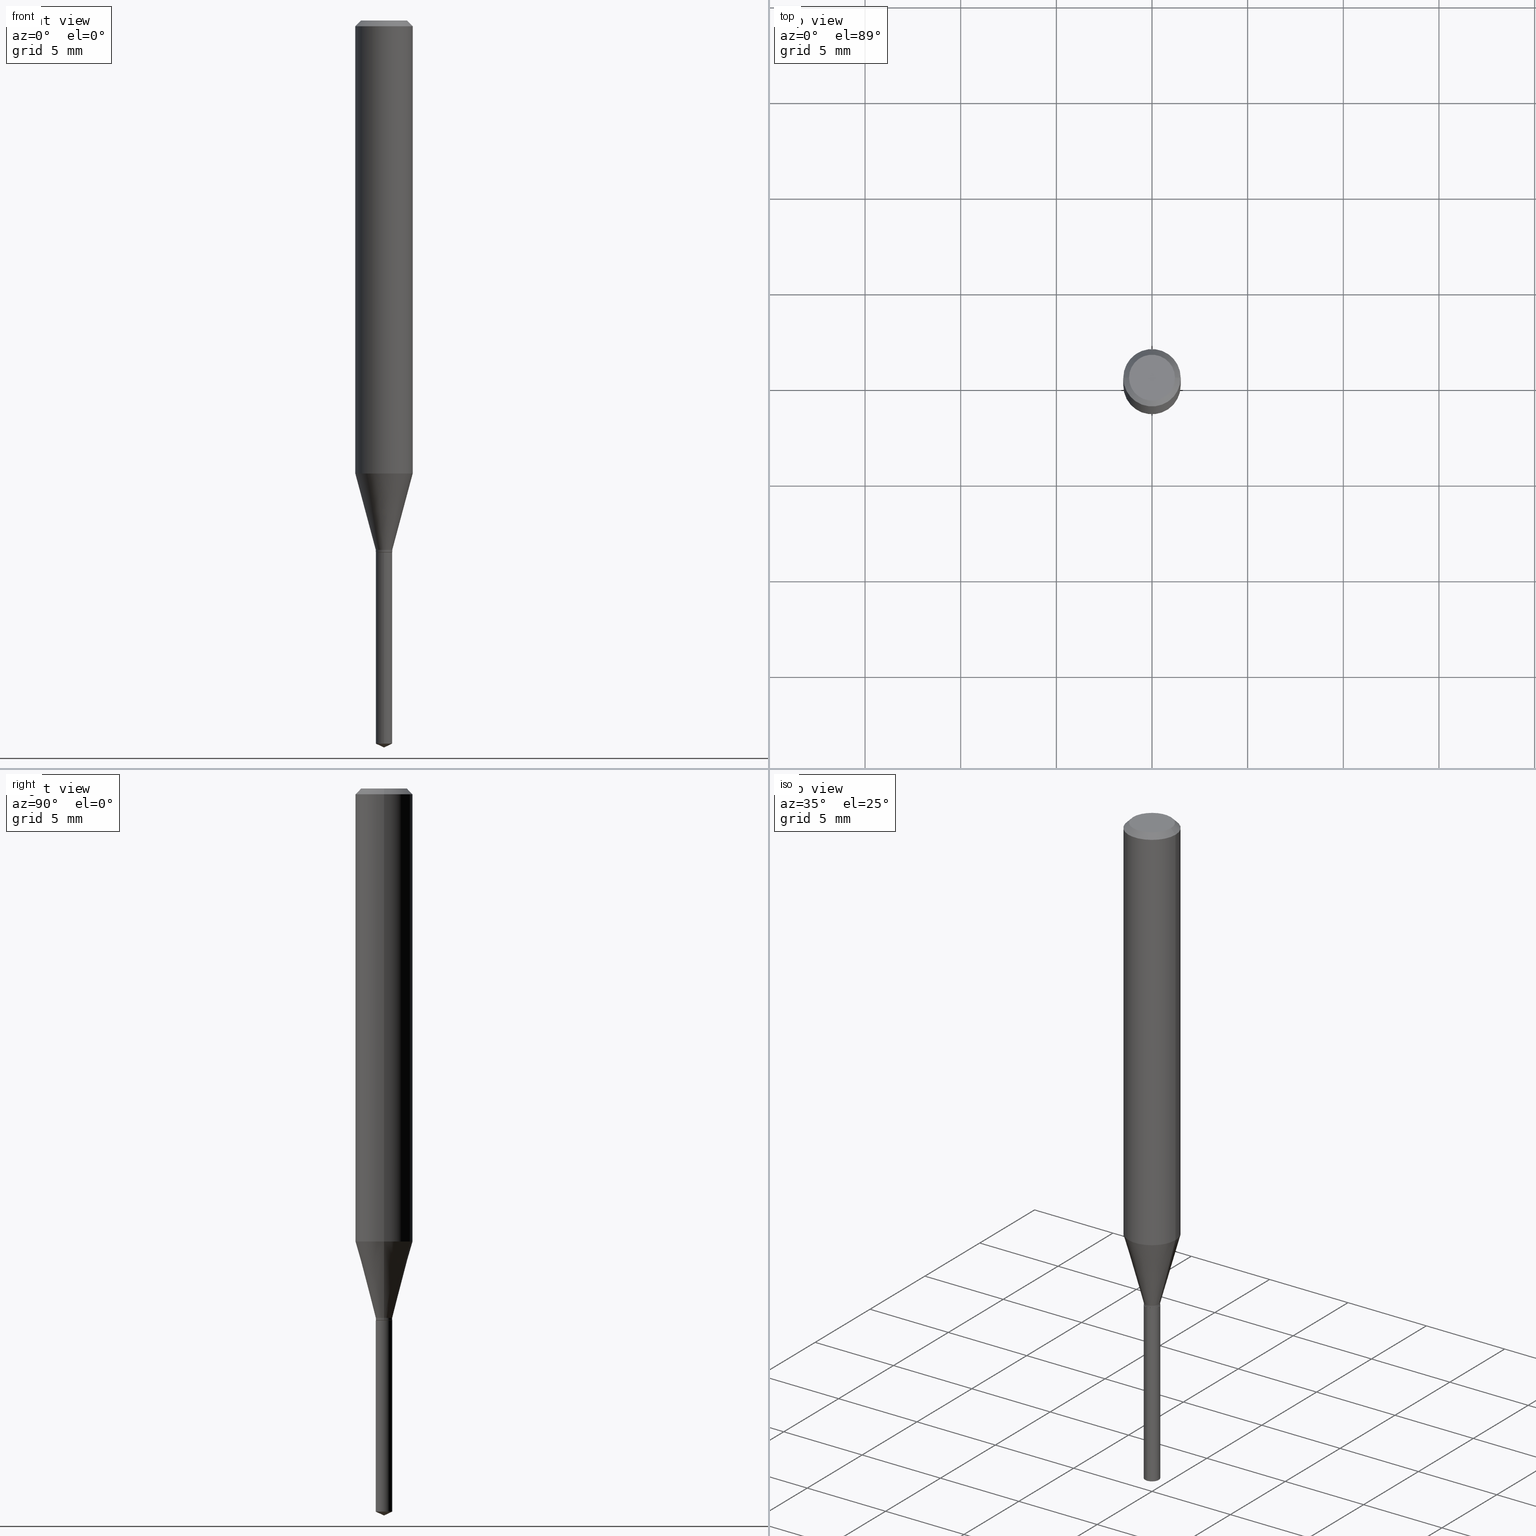
[diagram: canonical four-view strip — front | top / right | iso, engineering-drawing reading convention]
A machine part, canonical four-view strip (front | top / right | iso — engineering-drawing reading convention). The complete STEP part file that produces these views, byte-faithful:
ISO-10303-21;
HEADER;
FILE_DESCRIPTION (( 'STEP AP203' ),
    '1' );
FILE_NAME ('07464.STEP',
    '2024-04-23T21:44:01',
    ( '' ),
    ( '' ),
    'SwSTEP 2.0',
    'SolidWorks 2023',
    '' );
FILE_SCHEMA (( 'CONFIG_CONTROL_DESIGN' ));
ENDSEC;

DATA;
#1 = CC_DESIGN_APPROVAL ( #32, ( #219 ) ) ;
#2 = CARTESIAN_POINT ( 'NONE',  ( 2.888098660104663328E-31, -4.123439461173779030E-17, -0.01181000000000006871 ) ) ;
#3 = EDGE_LOOP ( 'NONE', ( #52, #10, #251, #330 ) ) ;
#4 = FACE_OUTER_BOUND ( 'NONE', #194, .T. ) ;
#5 = CC_DESIGN_DATE_AND_TIME_ASSIGNMENT ( #17, #210, ( #489 ) ) ;
#6 = EDGE_LOOP ( 'NONE', ( #88, #440, #262 ) ) ;
#7 = ORIENTED_EDGE ( 'NONE', *, *, #349, .T. ) ;
#8 = VECTOR ( 'NONE', #415, 39.37007874015748143 ) ;
#9 = CARTESIAN_POINT ( 'NONE',  ( -0.01694999999999995469, 1.204369937113366595E-16, -8.337594977982043527E-31 ) ) ;
#10 = ORIENTED_EDGE ( 'NONE', *, *, #416, .T. ) ;
#11 = DIRECTION ( 'NONE',  ( -2.445468806185136597E-29, 3.491481338843145583E-15, 1.000000000000000000 ) ) ;
#12 = ORIENTED_EDGE ( 'NONE', *, *, #299, .F. ) ;
#13 = APPROVAL_STATUS ( 'not_yet_approved' ) ;
#14 = CARTESIAN_POINT ( 'NONE',  ( 0.000000000000000000, 0.000000000000000000, 0.000000000000000000 ) ) ;
#15 = ORIENTED_EDGE ( 'NONE', *, *, #38, .T. ) ;
#16 = CC_DESIGN_APPROVAL ( #284, ( #337 ) ) ;
#17 = DATE_AND_TIME ( #287, #329 ) ;
#18 = FACE_OUTER_BOUND ( 'NONE', #229, .T. ) ;
#19 = CARTESIAN_POINT ( 'NONE',  ( -0.05905000000000006077, 4.195754854663395916E-16, -2.904631170795524694E-30 ) ) ;
#20 = EDGE_CURVE ( 'NONE', #368, #341, #315, .T. ) ;
#21 = EDGE_LOOP ( 'NONE', ( #478, #363, #274, #94 ) ) ;
#22 = PERSON_AND_ORGANIZATION_ROLE ( 'design_supplier' ) ;
#23 = DIRECTION ( 'NONE',  ( 1.000000000000000000, -6.982962677686274599E-15, 0.000000000000000000 ) ) ;
#24 = VECTOR ( 'NONE', #283, 39.37007874015748143 ) ;
#25 = CARTESIAN_POINT ( 'NONE',  ( 8.265746106709734507E-48, -1.180129479067563789E-33, -3.380025165646692144E-19 ) ) ;
#26 = VERTEX_POINT ( 'NONE', #154 ) ;
#27 = EDGE_CURVE ( 'NONE', #84, #368, #69, .T. ) ;
#28 = LINE ( 'NONE', #343, #100 ) ;
#29 = EDGE_LOOP ( 'NONE', ( #354, #365, #164, #257 ) ) ;
#30 = DIRECTION ( 'NONE',  ( -2.445468806185136597E-29, 3.491481338843145583E-15, 1.000000000000000000 ) ) ;
#31 = DIRECTION ( 'NONE',  ( -6.982962677686265922E-15, -1.000000000000000000, 0.000000000000000000 ) ) ;
#32 = APPROVAL ( #324, 'UNSPECIFIED' ) ;
#33 = LINE ( 'NONE', #220, #68 ) ;
#34 =( NAMED_UNIT ( * ) SI_UNIT ( $, .STERADIAN. ) SOLID_ANGLE_UNIT ( ) );
#35 = DIRECTION ( 'NONE',  ( 1.000000000000000000, -6.982962677686252511E-15, 0.000000000000000000 ) ) ;
#36 = VERTEX_POINT ( 'NONE', #41 ) ;
#37 = AXIS2_PLACEMENT_3D ( 'NONE', #417, #150, #35 ) ;
#38 = EDGE_CURVE ( 'NONE', #247, #173, #240, .T. ) ;
#39 = APPLICATION_PROTOCOL_DEFINITION ( 'international standard', 'config_control_design', 1994, #234 ) ;
#40 = AXIS2_PLACEMENT_3D ( 'NONE', #129, #89, #483 ) ;
#41 = CARTESIAN_POINT ( 'NONE',  ( -0.01694999999999995469, -3.691213183903725225E-15, -1.093999999999999861 ) ) ;
#42 = CARTESIAN_POINT ( 'NONE',  ( 0.000000000000000000, 0.000000000000000000, 0.000000000000000000 ) ) ;
#43 = ORIENTED_EDGE ( 'NONE', *, *, #352, .T. ) ;
#44 = APPROVAL_DATE_TIME ( #83, #403 ) ;
#45 = ORIENTED_EDGE ( 'NONE', *, *, #61, .F. ) ;
#46 = CC_DESIGN_PERSON_AND_ORGANIZATION_ASSIGNMENT ( #197, #22, ( #219 ) ) ;
#47 = DATE_AND_TIME ( #300, #482 ) ;
#48 = FACE_OUTER_BOUND ( 'NONE', #91, .T. ) ;
#49 = COORDINATED_UNIVERSAL_TIME_OFFSET ( 5, 0, .BEHIND. ) ;
#50 = DIRECTION ( 'NONE',  ( 1.000000000000000000, -6.982962677686266711E-15, 4.876176775795935793E-29 ) ) ;
#51 = PLANE ( 'NONE',  #450 ) ;
#52 = ORIENTED_EDGE ( 'NONE', *, *, #383, .F. ) ;
#53 = CIRCLE ( 'NONE', #250, 0.05904999999999999832 ) ;
#54 = DATE_AND_TIME ( #204, #289 ) ;
#55 = CC_DESIGN_PERSON_AND_ORGANIZATION_ASSIGNMENT ( #319, #116, ( #192 ) ) ;
#56 = CARTESIAN_POINT ( 'NONE',  ( 2.676565608369631794E-29, -3.821426325363822773E-15, -1.094499999999999806 ) ) ;
#57 = ORIENTED_EDGE ( 'NONE', *, *, #260, .F. ) ;
#58 = DIRECTION ( 'NONE',  ( 1.000000000000000000, -6.982962677686274599E-15, 0.000000000000000000 ) ) ;
#59 = ORIENTED_EDGE ( 'NONE', *, *, #396, .F. ) ;
#60 = DIRECTION ( 'NONE',  ( -6.982962677686267499E-15, -1.000000000000000000, 3.520397390770567071E-15 ) ) ;
#61 = EDGE_CURVE ( 'NONE', #432, #326, #309, .T. ) ;
#62 = AXIS2_PLACEMENT_3D ( 'NONE', #67, #305, #259 ) ;
#63 = FACE_OUTER_BOUND ( 'NONE', #282, .T. ) ;
#64 = CARTESIAN_POINT ( 'NONE',  ( 2.664093717458087237E-29, -3.803619770535721859E-15, -1.089399999999999924 ) ) ;
#65 = CYLINDRICAL_SURFACE ( 'NONE', #351, 0.01694999999999999979 ) ;
#66 = ADVANCED_FACE ( 'NONE', ( #48 ), #110, .T. ) ;
#67 = CARTESIAN_POINT ( 'NONE',  ( 2.279863275088461095E-29, -3.255040530450565438E-15, -0.9322806610013497641 ) ) ;
#68 = VECTOR ( 'NONE', #174, 39.37007874015748143 ) ;
#69 = CIRCLE ( 'NONE', #147, 0.01694999999999999979 ) ;
#70 = CARTESIAN_POINT ( 'NONE',  ( 2.664093717458087237E-29, -3.803619770535721859E-15, -1.089399999999999924 ) ) ;
#71 = MANIFOLD_SOLID_BREP ( 'Body-Move/Copy2[2]', #373 ) ;
#72 = CARTESIAN_POINT ( 'NONE',  ( 0.05905000000000006077, -4.123439461173744764E-16, 2.879382386107503023E-30 ) ) ;
#73 = DIRECTION ( 'NONE',  ( -2.445470214571802116E-29, 3.491479321953280158E-15, 1.000000000000000000 ) ) ;
#74 = CC_DESIGN_PERSON_AND_ORGANIZATION_ASSIGNMENT ( #253, #134, ( #219 ) ) ;
#75 = DIRECTION ( 'NONE',  ( 1.000000000000000000, 0.000000000000000000, 0.000000000000000000 ) ) ;
#76 = CONICAL_SURFACE ( 'NONE', #345, 84.42940631927162087, 1.134464013796303572 ) ;
#77 = DIRECTION ( 'NONE',  ( -2.445468806185136597E-29, 3.491481338843145583E-15, 1.000000000000000000 ) ) ;
#78 = CC_DESIGN_SECURITY_CLASSIFICATION ( #337, ( #219 ) ) ;
#79 = DIRECTION ( 'NONE',  ( -2.445468806185136877E-29, 3.491481338843145188E-15, 1.000000000000000000 ) ) ;
#80 = PLANE ( 'NONE',  #211 ) ;
#81 = EDGE_CURVE ( 'NONE', #393, #247, #142, .T. ) ;
#82 = ORIENTED_EDGE ( 'NONE', *, *, #299, .T. ) ;
#83 = DATE_AND_TIME ( #389, #241 ) ;
#84 = VERTEX_POINT ( 'NONE', #279 ) ;
#85 = CONICAL_SURFACE ( 'NONE', #447, 0.01694999999999995469, 0.2617993877991499074 ) ;
#86 = PERSON_AND_ORGANIZATION ( #209, #132 ) ;
#87 = CARTESIAN_POINT ( 'NONE',  ( 2.888098660104663328E-31, -4.123439461173779030E-17, -0.01181000000000006871 ) ) ;
#88 = ORIENTED_EDGE ( 'NONE', *, *, #221, .F. ) ;
#89 = DIRECTION ( 'NONE',  ( -2.445470214571802116E-29, 3.491479321953280158E-15, 1.000000000000000000 ) ) ;
#90 = ORIENTED_EDGE ( 'NONE', *, *, #104, .F. ) ;
#91 = EDGE_LOOP ( 'NONE', ( #286, #252, #82, #408 ) ) ;
#92 = ADVANCED_FACE ( 'NONE', ( #421 ), #80, .F. ) ;
#93 = CARTESIAN_POINT ( 'NONE',  ( 0.05905000000000011628, -3.667384476567939964E-15, -0.9322806610013497641 ) ) ;
#94 = ORIENTED_EDGE ( 'NONE', *, *, #439, .F. ) ;
#95 = DIRECTION ( 'NONE',  ( -0.7071067811865453523, 2.468850131082234184E-15, -0.7071067811865496822 ) ) ;
#96 = ADVANCED_FACE ( 'NONE', ( #117 ), #418, .T. ) ;
#97 = CARTESIAN_POINT ( 'NONE',  ( 0.01694999999999995469, -3.921980987922503745E-15, -1.089399999999999924 ) ) ;
#98 = CIRCLE ( 'NONE', #181, 0.01694999999999995469 ) ;
#99 = DIRECTION ( 'NONE',  ( 2.445468806185136597E-29, -3.491481338843145583E-15, -1.000000000000000000 ) ) ;
#100 = VECTOR ( 'NONE', #444, 39.37007874015748143 ) ;
#101 = DIRECTION ( 'NONE',  ( -2.445468806185136597E-29, 3.491481338843145583E-15, 1.000000000000000000 ) ) ;
#102 = VECTOR ( 'NONE', #95, 39.37007874015748143 ) ;
#103 = DIRECTION ( 'NONE',  ( -2.445468806185136597E-29, 3.491481338843145583E-15, 1.000000000000000000 ) ) ;
#104 = EDGE_CURVE ( 'NONE', #341, #358, #187, .T. ) ;
#105 = CARTESIAN_POINT ( 'NONE',  ( 0.01694999999999995469, -1.183612173867819109E-16, 8.265119634974088033E-31 ) ) ;
#106 = CARTESIAN_POINT ( 'NONE',  ( 2.676565608369631794E-29, -3.821426325363822773E-15, -1.094499999999999806 ) ) ;
#107 = CC_DESIGN_PERSON_AND_ORGANIZATION_ASSIGNMENT ( #193, #465, ( #489 ) ) ;
#108 = DIRECTION ( 'NONE',  ( 1.000000000000000000, -6.982962677686265922E-15, 4.876176775795935793E-29 ) ) ;
#109 = FACE_OUTER_BOUND ( 'NONE', #342, .T. ) ;
#110 = CYLINDRICAL_SURFACE ( 'NONE', #401, 0.01694999999999995469 ) ;
#111 = DIRECTION ( 'NONE',  ( 1.000000000000000000, -6.982962677686266711E-15, 4.876176775795935232E-29 ) ) ;
#112 = ORIENTED_EDGE ( 'NONE', *, *, #431, .F. ) ;
#113 = AXIS2_PLACEMENT_3D ( 'NONE', #106, #103, #413 ) ;
#114 = EDGE_CURVE ( 'NONE', #368, #84, #280, .T. ) ;
#115 = VECTOR ( 'NONE', #122, 39.37007874015748143 ) ;
#116 = PERSON_AND_ORGANIZATION_ROLE ( 'design_owner' ) ;
#117 = FACE_OUTER_BOUND ( 'NONE', #334, .T. ) ;
#118 = MECHANICAL_CONTEXT ( 'NONE', #206, 'mechanical' ) ;
#119 = ORIENTED_EDGE ( 'NONE', *, *, #332, .F. ) ;
#120 = EDGE_LOOP ( 'NONE', ( #427, #45 ) ) ;
#121 = DATE_AND_TIME ( #360, #195 ) ;
#122 = DIRECTION ( 'NONE',  ( -2.445468806185136877E-29, 3.491481338843145188E-15, 1.000000000000000000 ) ) ;
#123 = APPROVAL_PERSON_ORGANIZATION ( #188, #403, #357 ) ;
#124 = ORIENTED_EDGE ( 'NONE', *, *, #254, .F. ) ;
#125 = ORIENTED_EDGE ( 'NONE', *, *, #176, .F. ) ;
#126 = LINE ( 'NONE', #405, #102 ) ;
#127 = EDGE_CURVE ( 'NONE', #393, #290, #126, .T. ) ;
#128 = ORIENTED_EDGE ( 'NONE', *, *, #383, .T. ) ;
#129 = CARTESIAN_POINT ( 'NONE',  ( 2.676565608369631794E-29, -3.821426325363822773E-15, -1.094499999999999806 ) ) ;
#130 = ORIENTED_EDGE ( 'NONE', *, *, #304, .F. ) ;
#131 = CARTESIAN_POINT ( 'NONE',  ( 2.664093717458087237E-29, -3.803619770535721859E-15, -1.089399999999999924 ) ) ;
#132 = ORGANIZATION ( 'UNSPECIFIED', 'UNSPECIFIED', '' ) ;
#133 = ADVANCED_FACE ( 'NONE', ( #18 ), #246, .T. ) ;
#134 = PERSON_AND_ORGANIZATION_ROLE ( 'creator' ) ;
#135 = DIRECTION ( 'NONE',  ( -6.982962677686265922E-15, -1.000000000000000000, 0.000000000000000000 ) ) ;
#136 = AXIS2_PLACEMENT_3D ( 'NONE', #56, #474, #214 ) ;
#137 = VECTOR ( 'NONE', #167, 39.37007874015748143 ) ;
#138 = DIRECTION ( 'NONE',  ( 1.000000000000000000, -6.982962677686274599E-15, 0.000000000000000000 ) ) ;
#139 = PLANE ( 'NONE',  #263 ) ;
#140 = EDGE_LOOP ( 'NONE', ( #57, #15, #203, #232 ) ) ;
#141 = DIRECTION ( 'NONE',  ( 6.982962677686265922E-15, 1.000000000000000000, -3.491479321953280158E-15 ) ) ;
#142 = CIRCLE ( 'NONE', #420, 0.04724000000000000421 ) ;
#143 = CARTESIAN_POINT ( 'NONE',  ( 2.888098660104663328E-31, -4.123439461173779030E-17, -0.01181000000000006871 ) ) ;
#144 = DIRECTION ( 'NONE',  ( -2.445468806185136597E-29, 3.491481338843145583E-15, 1.000000000000000000 ) ) ;
#145 = DIRECTION ( 'NONE',  ( -1.000000000000000000, 6.982962677686266711E-15, 0.000000000000000000 ) ) ;
#146 = AXIS2_PLACEMENT_3D ( 'NONE', #42, #273, #111 ) ;
#147 = AXIS2_PLACEMENT_3D ( 'NONE', #320, #237, #353 ) ;
#148 = FACE_OUTER_BOUND ( 'NONE', #29, .T. ) ;
#149 = EDGE_LOOP ( 'NONE', ( #7, #128, #130, #317 ) ) ;
#150 = DIRECTION ( 'NONE',  ( -2.445468806185136597E-29, 3.491481338843145583E-15, 1.000000000000000000 ) ) ;
#151 = ORIENTED_EDGE ( 'NONE', *, *, #254, .T. ) ;
#152 = CARTESIAN_POINT ( 'NONE',  ( 3.658667988020872822E-29, -5.223602213574301462E-15, -1.496099999999999985 ) ) ;
#153 = AXIS2_PLACEMENT_3D ( 'NONE', #87, #99, #487 ) ;
#154 = CARTESIAN_POINT ( 'NONE',  ( 0.01694999999999995469, -3.921980987922503745E-15, -1.089399999999999924 ) ) ;
#155 = CIRCLE ( 'NONE', #414, 0.05904999999999999832 ) ;
#156 = ADVANCED_FACE ( 'NONE', ( #443 ), #51, .F. ) ;
#157 = APPROVAL_STATUS ( 'not_yet_approved' ) ;
#158 = ORIENTED_EDGE ( 'NONE', *, *, #439, .T. ) ;
#159 = VECTOR ( 'NONE', #179, 39.37007874015748143 ) ;
#160 = VERTEX_POINT ( 'NONE', #170 ) ;
#161 = APPROVAL_DATE_TIME ( #54, #284 ) ;
#162 = EDGE_CURVE ( 'NONE', #358, #341, #212, .T. ) ;
#163 = CARTESIAN_POINT ( 'NONE',  ( 0.05904999999999999832, -4.535783407291118600E-16, -0.01181000000000006871 ) ) ;
#164 = ORIENTED_EDGE ( 'NONE', *, *, #127, .T. ) ;
#165 = SECURITY_CLASSIFICATION_LEVEL ( 'unclassified' ) ;
#166 = CARTESIAN_POINT ( 'NONE',  ( 4.132873053354867254E-48, -5.900647395337818946E-34, -1.690012582823346072E-19 ) ) ;
#167 = DIRECTION ( 'NONE',  ( -6.328713451373337824E-15, -0.9063077870366440525, 0.4226182617407122644 ) ) ;
#168 = EDGE_CURVE ( 'NONE', #298, #290, #303, .T. ) ;
#169 = ORIENTED_EDGE ( 'NONE', *, *, #213, .T. ) ;
#170 = CARTESIAN_POINT ( 'NONE',  ( -0.01694999999999995469, -3.691213183903725225E-15, -1.089399999999999924 ) ) ;
#171 = VECTOR ( 'NONE', #463, 39.37007874015748143 ) ;
#172 = CARTESIAN_POINT ( 'NONE',  ( 2.888098660104663328E-31, -4.123439461173779030E-17, -0.01181000000000006871 ) ) ;
#173 = VERTEX_POINT ( 'NONE', #163 ) ;
#174 = DIRECTION ( 'NONE',  ( -0.7071067811864901742, 7.493145998870147479E-15, 0.7071067811866048602 ) ) ;
#175 = ORIENTED_EDGE ( 'NONE', *, *, #260, .T. ) ;
#176 = EDGE_CURVE ( 'NONE', #36, #208, #186, .T. ) ;
#177 = DIRECTION ( 'NONE',  ( 1.000000000000000000, -6.982962677686274599E-15, 0.000000000000000000 ) ) ;
#178 = LINE ( 'NONE', #270, #428 ) ;
#179 = DIRECTION ( 'NONE',  ( -2.445468806185136877E-29, 3.491481338843145188E-15, 1.000000000000000000 ) ) ;
#180 = ADVANCED_FACE ( 'NONE', ( #437 ), #76, .T. ) ;
#181 = AXIS2_PLACEMENT_3D ( 'NONE', #370, #442, #23 ) ;
#182 = LINE ( 'NONE', #9, #24 ) ;
#183 = DIRECTION ( 'NONE',  ( 2.445468806185136597E-29, -3.491481338843145583E-15, -1.000000000000000000 ) ) ;
#184 = CONICAL_SURFACE ( 'NONE', #313, 84.42940631927162087, 1.134464013796303572 ) ;
#185 = VERTEX_POINT ( 'NONE', #93 ) ;
#186 = CIRCLE ( 'NONE', #449, 0.01694999999999995469 ) ;
#187 = CIRCLE ( 'NONE', #40, 0.01694999999999999979 ) ;
#188 = PERSON_AND_ORGANIZATION ( #209, #132 ) ;
#189 = CARTESIAN_POINT ( 'NONE',  ( 8.265746106709734507E-48, -1.180129479067563789E-33, -3.380025165646692144E-19 ) ) ;
#190 = LINE ( 'NONE', #423, #171 ) ;
#191 = EDGE_LOOP ( 'NONE', ( #59, #291, #323 ) ) ;
#192 = PRODUCT ( '07464', '07464', '', ( #118 ) ) ;
#193 = PERSON_AND_ORGANIZATION ( #209, #132 ) ;
#194 = EDGE_LOOP ( 'NONE', ( #151, #466, #471, #12 ) ) ;
#195 = LOCAL_TIME ( 17, 44, 1.000000000000000000, #49 ) ;
#196 = CLOSED_SHELL ( 'NONE', ( #96, #314, #180, #422, #366 ) ) ;
#197 = PERSON_AND_ORGANIZATION ( #209, #132 ) ;
#198 = CARTESIAN_POINT ( 'NONE',  ( 0.000000000000000000, 0.000000000000000000, 0.000000000000000000 ) ) ;
#199 = EDGE_LOOP ( 'NONE', ( #438, #385, #43, #90 ) ) ;
#200 = ADVANCED_FACE ( 'NONE', ( #328 ), #331, .T. ) ;
#201 = APPROVAL_ROLE ( '' ) ;
#202 = LINE ( 'NONE', #258, #137 ) ;
#203 = ORIENTED_EDGE ( 'NONE', *, *, #356, .T. ) ;
#204 = CALENDAR_DATE ( 2024, 23, 4 ) ;
#205 = DIRECTION ( 'NONE',  ( -1.000000000000000000, 6.982962677686265922E-15, -4.876176775795935793E-29 ) ) ;
#206 = APPLICATION_CONTEXT ( 'configuration controlled 3d designs of mechanical parts and assemblies' ) ;
#207 = VECTOR ( 'NONE', #79, 39.37007874015748143 ) ;
#208 = VERTEX_POINT ( 'NONE', #476 ) ;
#209 = PERSON ( 'UNSPECIFIED', 'UNSPECIFIED', 'UNSPECIFIED', ('UNSPECIFIED'), ('UNSPECIFIED'), ('UNSPECIFIED') ) ;
#210 = DATE_TIME_ROLE ( 'creation_date' ) ;
#211 = AXIS2_PLACEMENT_3D ( 'NONE', #236, #464, #108 ) ;
#212 = CIRCLE ( 'NONE', #348, 0.01694999999999999979 ) ;
#213 = EDGE_CURVE ( 'NONE', #326, #432, #239, .T. ) ;
#214 = DIRECTION ( 'NONE',  ( 1.000000000000000000, -6.982962677686252511E-15, 0.000000000000000000 ) ) ;
#215 = AXIS2_PLACEMENT_3D ( 'NONE', #395, #399, #50 ) ;
#216 = ORIENTED_EDGE ( 'NONE', *, *, #352, .F. ) ;
#217 = DIRECTION ( 'NONE',  ( -2.445468806185136597E-29, 3.491481338843145583E-15, 1.000000000000000000 ) ) ;
#218 = LINE ( 'NONE', #97, #376 ) ;
#219 = PRODUCT_DEFINITION_FORMATION_WITH_SPECIFIED_SOURCE ( 'ANY', '', #192, .NOT_KNOWN. ) ;
#220 = CARTESIAN_POINT ( 'NONE',  ( -0.01644999999999999934, -3.704542045331286544E-15, -1.094499999999999806 ) ) ;
#221 = EDGE_CURVE ( 'NONE', #477, #84, #202, .T. ) ;
#222 = FACE_OUTER_BOUND ( 'NONE', #199, .T. ) ;
#223 = CARTESIAN_POINT ( 'NONE',  ( 2.676565608369631794E-29, -3.821426325363822773E-15, -1.094499999999999806 ) ) ;
#224 = CARTESIAN_POINT ( 'NONE',  ( -0.05904999999999999832, -1.228561977064811302E-15, -0.01181000000000006871 ) ) ;
#225 = ADVANCED_FACE ( 'NONE', ( #301 ), #333, .T. ) ;
#226 = AXIS2_PLACEMENT_3D ( 'NONE', #461, #459, #390 ) ;
#227 = FACE_OUTER_BOUND ( 'NONE', #3, .T. ) ;
#228 =( CONVERSION_BASED_UNIT ( 'INCH', #425 ) LENGTH_UNIT ( ) NAMED_UNIT ( #338 ) );
#229 = EDGE_LOOP ( 'NONE', ( #306, #387, #158, #119 ) ) ;
#230 = APPLICATION_PROTOCOL_DEFINITION ( 'international standard', 'config_control_design', 1994, #206 ) ;
#231 = APPROVAL_PERSON_ORGANIZATION ( #86, #284, #201 ) ;
#232 = ORIENTED_EDGE ( 'NONE', *, *, #127, .F. ) ;
#233 = AXIS2_PLACEMENT_3D ( 'NONE', #14, #434, #292 ) ;
#234 = APPLICATION_CONTEXT ( 'configuration controlled 3d designs of mechanical parts and assemblies' ) ;
#235 = CC_DESIGN_DATE_AND_TIME_ASSIGNMENT ( #121, #391, ( #337 ) ) ;
#236 = CARTESIAN_POINT ( 'NONE',  ( 2.676565608369631794E-29, -3.821426325363822773E-15, -1.094499999999999806 ) ) ;
#237 = DIRECTION ( 'NONE',  ( -2.445470214571802116E-29, 3.491479321953280158E-15, 1.000000000000000000 ) ) ;
#238 = COORDINATED_UNIVERSAL_TIME_OFFSET ( 5, 0, .BEHIND. ) ;
#239 = CIRCLE ( 'NONE', #136, 0.01644999999999999934 ) ;
#240 = LINE ( 'NONE', #272, #255 ) ;
#241 = LOCAL_TIME ( 17, 44, 1.000000000000000000, #281 ) ;
#242 = EDGE_CURVE ( 'NONE', #26, #185, #218, .T. ) ;
#243 = CARTESIAN_POINT ( 'NONE',  ( -9.261968845786000133E-28, 1.322362114038720264E-13, 37.87397874015748300 ) ) ;
#244 = ORIENTED_EDGE ( 'NONE', *, *, #162, .T. ) ;
#245 = MANIFOLD_SOLID_BREP ( 'Body-Move/Copy2[1]', #196 ) ;
#246 = CYLINDRICAL_SURFACE ( 'NONE', #233, 0.05905000000000006077 ) ;
#247 = VERTEX_POINT ( 'NONE', #256 ) ;
#248 = DESIGN_CONTEXT ( 'detailed design', #234, 'design' ) ;
#249 = DIRECTION ( 'NONE',  ( -2.445468806185136597E-29, 3.491481338843145583E-15, 1.000000000000000000 ) ) ;
#250 = AXIS2_PLACEMENT_3D ( 'NONE', #172, #101, #486 ) ;
#251 = ORIENTED_EDGE ( 'NONE', *, *, #242, .T. ) ;
#252 = ORIENTED_EDGE ( 'NONE', *, *, #176, .T. ) ;
#253 = PERSON_AND_ORGANIZATION ( #209, #132 ) ;
#254 = EDGE_CURVE ( 'NONE', #208, #36, #98, .T. ) ;
#255 = VECTOR ( 'NONE', #392, 39.37007874015748143 ) ;
#256 = CARTESIAN_POINT ( 'NONE',  ( 0.04724000000000000421, -3.852183633974369345E-16, -3.380025165621689721E-19 ) ) ;
#257 = ORIENTED_EDGE ( 'NONE', *, *, #332, .T. ) ;
#258 = CARTESIAN_POINT ( 'NONE',  ( 3.658664905062460986E-29, -5.223606628546217219E-15, -1.496099999999999985 ) ) ;
#259 = DIRECTION ( 'NONE',  ( 1.000000000000000000, -6.982962677686266711E-15, 0.000000000000000000 ) ) ;
#260 = EDGE_CURVE ( 'NONE', #247, #393, #295, .T. ) ;
#261 = AXIS2_PLACEMENT_3D ( 'NONE', #264, #377, #347 ) ;
#262 = ORIENTED_EDGE ( 'NONE', *, *, #27, .F. ) ;
#263 = AXIS2_PLACEMENT_3D ( 'NONE', #307, #452, #141 ) ;
#264 = CARTESIAN_POINT ( 'NONE',  ( 2.279863275088461095E-29, -3.255040530450565438E-15, -0.9322806610013497641 ) ) ;
#265 = VECTOR ( 'NONE', #419, 39.37007874015748143 ) ;
#266 = DIRECTION ( 'NONE',  ( -2.445468806185136597E-29, 3.491481338843145583E-15, 1.000000000000000000 ) ) ;
#267 = ADVANCED_FACE ( 'NONE', ( #288 ), #412, .T. ) ;
#268 = LINE ( 'NONE', #105, #159 ) ;
#269 = AXIS2_PLACEMENT_3D ( 'NONE', #344, #144, #177 ) ;
#270 = CARTESIAN_POINT ( 'NONE',  ( -0.01694999999999995469, -3.683182776824385520E-15, -1.089399999999999924 ) ) ;
#271 =( NAMED_UNIT ( * ) PLANE_ANGLE_UNIT ( ) SI_UNIT ( $, .RADIAN. ) );
#272 = CARTESIAN_POINT ( 'NONE',  ( 0.05904999999999999832, -4.463468013801466955E-16, -0.01181000000000006871 ) ) ;
#273 = DIRECTION ( 'NONE',  ( -2.445468806185136597E-29, 3.491481338843145583E-15, 1.000000000000000000 ) ) ;
#274 = ORIENTED_EDGE ( 'NONE', *, *, #356, .F. ) ;
#275 = EDGE_CURVE ( 'NONE', #298, #185, #469, .T. ) ;
#276 = AXIS2_PLACEMENT_3D ( 'NONE', #70, #484, #138 ) ;
#277 =( LENGTH_UNIT ( ) NAMED_UNIT ( * ) SI_UNIT ( $, .METRE. ) );
#278 = CONICAL_SURFACE ( 'NONE', #380, 0.05904999999999999832, 0.7853981633974452814 ) ;
#279 = CARTESIAN_POINT ( 'NONE',  ( -1.183612173867458205E-16, -0.01695000000000520049, -1.488196085194272378 ) ) ;
#280 = CIRCLE ( 'NONE', #359, 0.01694999999999999979 ) ;
#281 = COORDINATED_UNIVERSAL_TIME_OFFSET ( 5, 0, .BEHIND. ) ;
#282 = EDGE_LOOP ( 'NONE', ( #244, #445 ) ) ;
#283 = DIRECTION ( 'NONE',  ( -2.445468806185136877E-29, 3.491481338843145188E-15, 1.000000000000000000 ) ) ;
#284 = APPROVAL ( #13, 'UNSPECIFIED' ) ;
#285 = ORIENTED_EDGE ( 'NONE', *, *, #27, .T. ) ;
#286 = ORIENTED_EDGE ( 'NONE', *, *, #468, .F. ) ;
#287 = CALENDAR_DATE ( 2024, 23, 4 ) ;
#288 = FACE_OUTER_BOUND ( 'NONE', #140, .T. ) ;
#289 = LOCAL_TIME ( 17, 44, 1.000000000000000000, #296 ) ;
#290 = VERTEX_POINT ( 'NONE', #224 ) ;
#291 = ORIENTED_EDGE ( 'NONE', *, *, #221, .T. ) ;
#292 = DIRECTION ( 'NONE',  ( 1.000000000000000000, -6.982962677686266711E-15, 4.876176775795935793E-29 ) ) ;
#293 = EDGE_LOOP ( 'NONE', ( #355, #175 ) ) ;
#294 = EDGE_LOOP ( 'NONE', ( #169, #400, #124, #112 ) ) ;
#295 = CIRCLE ( 'NONE', #384, 0.04724000000000000421 ) ;
#296 = COORDINATED_UNIVERSAL_TIME_OFFSET ( 5, 0, .BEHIND. ) ;
#297 = CARTESIAN_POINT ( 'NONE',  ( 2.676565608369631794E-29, -3.821426325363822773E-15, -1.094499999999999806 ) ) ;
#298 = VERTEX_POINT ( 'NONE', #490 ) ;
#299 = EDGE_CURVE ( 'NONE', #208, #26, #268, .T. ) ;
#300 = CALENDAR_DATE ( 2024, 23, 4 ) ;
#301 = FACE_OUTER_BOUND ( 'NONE', #149, .T. ) ;
#302 =( GEOMETRIC_REPRESENTATION_CONTEXT ( 3 ) GLOBAL_UNCERTAINTY_ASSIGNED_CONTEXT ( ( #479 ) ) GLOBAL_UNIT_ASSIGNED_CONTEXT ( ( #228, #271, #34 ) ) REPRESENTATION_CONTEXT ( 'NONE', 'WORKASPACE' ) );
#303 = LINE ( 'NONE', #19, #115 ) ;
#304 = EDGE_CURVE ( 'NONE', #185, #298, #406, .T. ) ;
#305 = DIRECTION ( 'NONE',  ( -2.445468806185136597E-29, 3.491481338843145583E-15, 1.000000000000000000 ) ) ;
#306 = ORIENTED_EDGE ( 'NONE', *, *, #168, .F. ) ;
#307 = CARTESIAN_POINT ( 'NONE',  ( 2.676565608369631794E-29, -3.821426325363822773E-15, -1.094499999999999806 ) ) ;
#308 = APPROVAL_PERSON_ORGANIZATION ( #429, #32, #436 ) ;
#309 = CIRCLE ( 'NONE', #226, 0.01644999999999999934 ) ;
#310 = DIRECTION ( 'NONE',  ( -0.2588190451025211836, 5.211531920934547886E-15, 0.9659258262890679791 ) ) ;
#311 = CARTESIAN_POINT ( 'NONE',  ( -1.183612173867554348E-16, -0.01695000000000382312, -1.094499999999999806 ) ) ;
#312 = CARTESIAN_POINT ( 'NONE',  ( 0.01644999999999999934, -3.936296061411761652E-15, -1.094499999999999806 ) ) ;
#313 = AXIS2_PLACEMENT_3D ( 'NONE', #381, #382, #488 ) ;
#314 = ADVANCED_FACE ( 'NONE', ( #375 ), #184, .T. ) ;
#315 = LINE ( 'NONE', #426, #265 ) ;
#316 = LINE ( 'NONE', #72, #207 ) ;
#317 = ORIENTED_EDGE ( 'NONE', *, *, #242, .F. ) ;
#318 = CONICAL_SURFACE ( 'NONE', #113, 0.01644999999999999934, 0.7853981633973672327 ) ;
#319 = PERSON_AND_ORGANIZATION ( #209, #132 ) ;
#320 = CARTESIAN_POINT ( 'NONE',  ( 3.639337658305747829E-29, -5.196008065953581522E-15, -1.488196085194272378 ) ) ;
#321 = PRODUCT_RELATED_PRODUCT_CATEGORY ( 'detail', '', ( #192 ) ) ;
#322 = CARTESIAN_POINT ( 'NONE',  ( 0.000000000000000000, 0.000000000000000000, 0.000000000000000000 ) ) ;
#323 = ORIENTED_EDGE ( 'NONE', *, *, #114, .F. ) ;
#324 = APPROVAL_STATUS ( 'not_yet_approved' ) ;
#325 = DIRECTION ( 'NONE',  ( -2.445468806185136597E-29, 3.491481338843145583E-15, 1.000000000000000000 ) ) ;
#326 = VERTEX_POINT ( 'NONE', #312 ) ;
#327 = SHAPE_DEFINITION_REPRESENTATION ( #402, #462 ) ;
#328 = FACE_OUTER_BOUND ( 'NONE', #21, .T. ) ;
#329 = LOCAL_TIME ( 17, 44, 1.000000000000000000, #238 ) ;
#330 = ORIENTED_EDGE ( 'NONE', *, *, #275, .F. ) ;
#331 = CYLINDRICAL_SURFACE ( 'NONE', #215, 0.05905000000000006077 ) ;
#332 = EDGE_CURVE ( 'NONE', #290, #173, #155, .T. ) ;
#333 = CONICAL_SURFACE ( 'NONE', #362, 0.01694999999999995469, 0.2617993877991499074 ) ;
#334 = EDGE_LOOP ( 'NONE', ( #285, #433, #388, #216 ) ) ;
#335 = DIRECTION ( 'NONE',  ( 1.000000000000000000, -6.982962677686274599E-15, 0.000000000000000000 ) ) ;
#336 = CARTESIAN_POINT ( 'NONE',  ( 3.639337658305747829E-29, -5.196008065953581522E-15, -1.488196085194272378 ) ) ;
#337 = SECURITY_CLASSIFICATION ( '', '', #165 ) ;
#338 = DIMENSIONAL_EXPONENTS ( 1.000000000000000000, 0.000000000000000000, 0.000000000000000000, 0.000000000000000000, 0.000000000000000000, 0.000000000000000000, 0.000000000000000000 ) ;
#339 = EDGE_CURVE ( 'NONE', #432, #36, #33, .T. ) ;
#340 = CARTESIAN_POINT ( 'NONE',  ( 3.658668015054778287E-29, -5.223602213574301462E-15, -1.496099999999999985 ) ) ;
#341 = VERTEX_POINT ( 'NONE', #350 ) ;
#342 = EDGE_LOOP ( 'NONE', ( #475, #472, #435, #125 ) ) ;
#343 = CARTESIAN_POINT ( 'NONE',  ( -1.183612173867554348E-16, -0.01695000000000382312, -1.094499999999999806 ) ) ;
#344 = CARTESIAN_POINT ( 'NONE',  ( 2.664093717458087237E-29, -3.803619770535721859E-15, -1.089399999999999924 ) ) ;
#345 = AXIS2_PLACEMENT_3D ( 'NONE', #243, #369, #60 ) ;
#346 = CIRCLE ( 'NONE', #269, 0.01694999999999995469 ) ;
#347 = DIRECTION ( 'NONE',  ( 1.000000000000000000, -6.982962677686266711E-15, 0.000000000000000000 ) ) ;
#348 = AXIS2_PLACEMENT_3D ( 'NONE', #297, #367, #135 ) ;
#349 = EDGE_CURVE ( 'NONE', #26, #160, #346, .T. ) ;
#350 = CARTESIAN_POINT ( 'NONE',  ( 1.204369937113734402E-16, 0.01694999999999617993, -1.094499999999999806 ) ) ;
#351 = AXIS2_PLACEMENT_3D ( 'NONE', #223, #379, #31 ) ;
#352 = EDGE_CURVE ( 'NONE', #84, #358, #28, .T. ) ;
#353 = DIRECTION ( 'NONE',  ( -6.982962677686265922E-15, -1.000000000000000000, 0.000000000000000000 ) ) ;
#354 = ORIENTED_EDGE ( 'NONE', *, *, #38, .F. ) ;
#355 = ORIENTED_EDGE ( 'NONE', *, *, #81, .T. ) ;
#356 = EDGE_CURVE ( 'NONE', #173, #290, #53, .T. ) ;
#357 = APPROVAL_ROLE ( '' ) ;
#358 = VERTEX_POINT ( 'NONE', #311 ) ;
#359 = AXIS2_PLACEMENT_3D ( 'NONE', #336, #397, #404 ) ;
#360 = CALENDAR_DATE ( 2024, 23, 4 ) ;
#361 = DIRECTION ( 'NONE',  ( 1.000000000000000000, -6.982962677686266711E-15, 4.876176775795935232E-29 ) ) ;
#362 = AXIS2_PLACEMENT_3D ( 'NONE', #131, #217, #335 ) ;
#363 = ORIENTED_EDGE ( 'NONE', *, *, #168, .T. ) ;
#364 = DIRECTION ( 'NONE',  ( -6.982962677686265922E-15, -1.000000000000000000, 0.000000000000000000 ) ) ;
#365 = ORIENTED_EDGE ( 'NONE', *, *, #81, .F. ) ;
#366 = ADVANCED_FACE ( 'NONE', ( #63 ), #139, .F. ) ;
#367 = DIRECTION ( 'NONE',  ( -2.445470214571802116E-29, 3.491479321953280158E-15, 1.000000000000000000 ) ) ;
#368 = VERTEX_POINT ( 'NONE', #454 ) ;
#369 = DIRECTION ( 'NONE',  ( -2.445470214571802116E-29, 3.491479321953280158E-15, 1.000000000000000000 ) ) ;
#370 = CARTESIAN_POINT ( 'NONE',  ( 2.675342873966538993E-29, -3.819680584694400481E-15, -1.093999999999999861 ) ) ;
#371 = ADVANCED_FACE ( 'NONE', ( #451 ), #318, .T. ) ;
#372 = DIRECTION ( 'NONE',  ( 2.438088387897960049E-29, -3.491481338843145188E-15, -1.000000000000000000 ) ) ;
#373 = CLOSED_SHELL ( 'NONE', ( #371, #267, #200, #225, #485, #66, #378, #133, #448, #156, #92, #453 ) ) ;
#374 = AXIS2_PLACEMENT_3D ( 'NONE', #424, #73, #364 ) ;
#375 = FACE_OUTER_BOUND ( 'NONE', #6, .T. ) ;
#376 = VECTOR ( 'NONE', #480, 39.37007874015748854 ) ;
#377 = DIRECTION ( 'NONE',  ( -2.445468806185136597E-29, 3.491481338843145583E-15, 1.000000000000000000 ) ) ;
#378 = ADVANCED_FACE ( 'NONE', ( #227 ), #85, .T. ) ;
#379 = DIRECTION ( 'NONE',  ( -2.445470214571802116E-29, 3.491479321953280158E-15, 1.000000000000000000 ) ) ;
#380 = AXIS2_PLACEMENT_3D ( 'NONE', #2, #183, #145 ) ;
#381 = CARTESIAN_POINT ( 'NONE',  ( -9.261968845786000133E-28, 1.322362114038720264E-13, 37.87397874015748300 ) ) ;
#382 = DIRECTION ( 'NONE',  ( -2.445470214571802116E-29, 3.491479321953280158E-15, 1.000000000000000000 ) ) ;
#383 = EDGE_CURVE ( 'NONE', #160, #298, #178, .T. ) ;
#384 = AXIS2_PLACEMENT_3D ( 'NONE', #25, #325, #470 ) ;
#385 = ORIENTED_EDGE ( 'NONE', *, *, #114, .T. ) ;
#386 = CIRCLE ( 'NONE', #276, 0.01694999999999995469 ) ;
#387 = ORIENTED_EDGE ( 'NONE', *, *, #275, .T. ) ;
#388 = ORIENTED_EDGE ( 'NONE', *, *, #162, .F. ) ;
#389 = CALENDAR_DATE ( 2024, 23, 4 ) ;
#390 = DIRECTION ( 'NONE',  ( 1.000000000000000000, -6.982962677686252511E-15, 0.000000000000000000 ) ) ;
#391 = DATE_TIME_ROLE ( 'classification_date' ) ;
#392 = DIRECTION ( 'NONE',  ( 0.7071067811865453523, -7.319954787623248157E-15, -0.7071067811865496822 ) ) ;
#393 = VERTEX_POINT ( 'NONE', #446 ) ;
#394 = PERSON_AND_ORGANIZATION ( #209, #132 ) ;
#395 = CARTESIAN_POINT ( 'NONE',  ( 0.000000000000000000, 0.000000000000000000, 0.000000000000000000 ) ) ;
#396 = EDGE_CURVE ( 'NONE', #477, #368, #411, .T. ) ;
#397 = DIRECTION ( 'NONE',  ( -2.445470214571802116E-29, 3.491479321953280158E-15, 1.000000000000000000 ) ) ;
#398 = CC_DESIGN_APPROVAL ( #403, ( #489 ) ) ;
#399 = DIRECTION ( 'NONE',  ( -2.445468806185136597E-29, 3.491481338843145583E-15, 1.000000000000000000 ) ) ;
#400 = ORIENTED_EDGE ( 'NONE', *, *, #339, .T. ) ;
#401 = AXIS2_PLACEMENT_3D ( 'NONE', #198, #77, #361 ) ;
#402 = PRODUCT_DEFINITION_SHAPE ( 'NONE', 'NONE',  #489 ) ;
#403 = APPROVAL ( #157, 'UNSPECIFIED' ) ;
#404 = DIRECTION ( 'NONE',  ( -6.982962677686265922E-15, -1.000000000000000000, 0.000000000000000000 ) ) ;
#405 = CARTESIAN_POINT ( 'NONE',  ( -0.05904999999999999832, 3.711095515056362547E-16, -0.01181000000000006871 ) ) ;
#406 = CIRCLE ( 'NONE', #62, 0.05905000000000011628 ) ;
#407 = DIRECTION ( 'NONE',  ( 1.000000000000000000, -6.982962677686274599E-15, 0.000000000000000000 ) ) ;
#408 = ORIENTED_EDGE ( 'NONE', *, *, #416, .F. ) ;
#409 = DIRECTION ( 'NONE',  ( 1.000000000000000000, -6.982962677686266711E-15, 0.000000000000000000 ) ) ;
#410 = CC_DESIGN_PERSON_AND_ORGANIZATION_ASSIGNMENT ( #394, #467, ( #337 ) ) ;
#411 = LINE ( 'NONE', #340, #8 ) ;
#412 = CONICAL_SURFACE ( 'NONE', #153, 0.05904999999999999832, 0.7853981633974452814 ) ;
#413 = DIRECTION ( 'NONE',  ( 1.000000000000000000, -6.982962677686252511E-15, 0.000000000000000000 ) ) ;
#414 = AXIS2_PLACEMENT_3D ( 'NONE', #143, #30, #409 ) ;
#415 = DIRECTION ( 'NONE',  ( 6.439704144416993277E-15, 0.9063077870366469391, 0.4226182617407059361 ) ) ;
#416 = EDGE_CURVE ( 'NONE', #160, #26, #386, .T. ) ;
#417 = CARTESIAN_POINT ( 'NONE',  ( 2.676565608369631794E-29, -3.821426325363822773E-15, -1.094499999999999806 ) ) ;
#418 = CYLINDRICAL_SURFACE ( 'NONE', #374, 0.01694999999999999979 ) ;
#419 = DIRECTION ( 'NONE',  ( -2.445470214571802396E-29, 3.491479321953280158E-15, 1.000000000000000000 ) ) ;
#420 = AXIS2_PLACEMENT_3D ( 'NONE', #189, #11, #457 ) ;
#421 = FACE_OUTER_BOUND ( 'NONE', #120, .T. ) ;
#422 = ADVANCED_FACE ( 'NONE', ( #222 ), #65, .T. ) ;
#423 = CARTESIAN_POINT ( 'NONE',  ( 0.01644999999999999934, -3.936296061411761652E-15, -1.094499999999999806 ) ) ;
#424 = CARTESIAN_POINT ( 'NONE',  ( 2.676565608369631794E-29, -3.821426325363822773E-15, -1.094499999999999806 ) ) ;
#425 = LENGTH_MEASURE_WITH_UNIT ( LENGTH_MEASURE( 0.02539999999999999897 ), #277 );
#426 = CARTESIAN_POINT ( 'NONE',  ( 1.204369937113637273E-16, 0.01694999999999617646, -1.094499999999999806 ) ) ;
#427 = ORIENTED_EDGE ( 'NONE', *, *, #213, .F. ) ;
#428 = VECTOR ( 'NONE', #310, 39.37007874015748854 ) ;
#429 = PERSON_AND_ORGANIZATION ( #209, #132 ) ;
#430 = CARTESIAN_POINT ( 'NONE',  ( 2.675342873966538993E-29, -3.819680584694400481E-15, -1.093999999999999861 ) ) ;
#431 = EDGE_CURVE ( 'NONE', #326, #208, #190, .T. ) ;
#432 = VERTEX_POINT ( 'NONE', #460 ) ;
#433 = ORIENTED_EDGE ( 'NONE', *, *, #20, .T. ) ;
#434 = DIRECTION ( 'NONE',  ( -2.445468806185136597E-29, 3.491481338843145583E-15, 1.000000000000000000 ) ) ;
#435 = ORIENTED_EDGE ( 'NONE', *, *, #431, .T. ) ;
#436 = APPROVAL_ROLE ( '' ) ;
#437 = FACE_OUTER_BOUND ( 'NONE', #191, .T. ) ;
#438 = ORIENTED_EDGE ( 'NONE', *, *, #20, .F. ) ;
#439 = EDGE_CURVE ( 'NONE', #185, #173, #316, .T. ) ;
#440 = ORIENTED_EDGE ( 'NONE', *, *, #396, .T. ) ;
#441 = CONICAL_SURFACE ( 'NONE', #37, 0.01644999999999999934, 0.7853981633973672327 ) ;
#442 = DIRECTION ( 'NONE',  ( -2.445468806185136597E-29, 3.491481338843145583E-15, 1.000000000000000000 ) ) ;
#443 = FACE_OUTER_BOUND ( 'NONE', #293, .T. ) ;
#444 = DIRECTION ( 'NONE',  ( -2.445470214571802396E-29, 3.491479321953280158E-15, 1.000000000000000000 ) ) ;
#445 = ORIENTED_EDGE ( 'NONE', *, *, #104, .T. ) ;
#446 = CARTESIAN_POINT ( 'NONE',  ( -0.04724000000000000421, 3.504923541997677355E-16, -3.380025165670481712E-19 ) ) ;
#447 = AXIS2_PLACEMENT_3D ( 'NONE', #64, #266, #407 ) ;
#448 = ADVANCED_FACE ( 'NONE', ( #148 ), #278, .T. ) ;
#449 = AXIS2_PLACEMENT_3D ( 'NONE', #430, #249, #58 ) ;
#450 = AXIS2_PLACEMENT_3D ( 'NONE', #166, #372, #205 ) ;
#451 = FACE_OUTER_BOUND ( 'NONE', #294, .T. ) ;
#452 = DIRECTION ( 'NONE',  ( 2.445470214571801836E-29, -3.491479321953280158E-15, -1.000000000000000000 ) ) ;
#453 = ADVANCED_FACE ( 'NONE', ( #109 ), #441, .T. ) ;
#454 = CARTESIAN_POINT ( 'NONE',  ( 1.204369937113733662E-16, 0.01694999999999480603, -1.488196085194272378 ) ) ;
#455 = AXIS2_PLACEMENT_3D ( 'NONE', #322, #458, #75 ) ;
#456 = CYLINDRICAL_SURFACE ( 'NONE', #146, 0.01694999999999995469 ) ;
#457 = DIRECTION ( 'NONE',  ( 1.000000000000000000, -6.982962677686266711E-15, 4.876185090822587894E-29 ) ) ;
#458 = DIRECTION ( 'NONE',  ( 0.000000000000000000, 0.000000000000000000, 1.000000000000000000 ) ) ;
#459 = DIRECTION ( 'NONE',  ( -2.445468806185136597E-29, 3.491481338843145583E-15, 1.000000000000000000 ) ) ;
#460 = CARTESIAN_POINT ( 'NONE',  ( -0.01644999999999999934, -3.701892818157175343E-15, -1.094499999999999806 ) ) ;
#461 = CARTESIAN_POINT ( 'NONE',  ( 2.676565608369631794E-29, -3.821426325363822773E-15, -1.094499999999999806 ) ) ;
#462 = ADVANCED_BREP_SHAPE_REPRESENTATION ( '07464', ( #245, #71, #455 ), #302 ) ;
#463 = DIRECTION ( 'NONE',  ( 0.7071067811864901742, -2.468850131081656343E-15, 0.7071067811866048602 ) ) ;
#464 = DIRECTION ( 'NONE',  ( -2.438088387897960049E-29, 3.491481338843145188E-15, 1.000000000000000000 ) ) ;
#465 = PERSON_AND_ORGANIZATION_ROLE ( 'creator' ) ;
#466 = ORIENTED_EDGE ( 'NONE', *, *, #468, .T. ) ;
#467 = PERSON_AND_ORGANIZATION_ROLE ( 'classification_officer' ) ;
#468 = EDGE_CURVE ( 'NONE', #36, #160, #182, .T. ) ;
#469 = CIRCLE ( 'NONE', #261, 0.05905000000000011628 ) ;
#470 = DIRECTION ( 'NONE',  ( 1.000000000000000000, -6.982962677686266711E-15, 4.876185090822587894E-29 ) ) ;
#471 = ORIENTED_EDGE ( 'NONE', *, *, #349, .F. ) ;
#472 = ORIENTED_EDGE ( 'NONE', *, *, #61, .T. ) ;
#473 = APPROVAL_DATE_TIME ( #47, #32 ) ;
#474 = DIRECTION ( 'NONE',  ( -2.445468806185136597E-29, 3.491481338843145583E-15, 1.000000000000000000 ) ) ;
#475 = ORIENTED_EDGE ( 'NONE', *, *, #339, .F. ) ;
#476 = CARTESIAN_POINT ( 'NONE',  ( 0.01694999999999995469, -3.938041802081183156E-15, -1.093999999999999861 ) ) ;
#477 = VERTEX_POINT ( 'NONE', #152 ) ;
#478 = ORIENTED_EDGE ( 'NONE', *, *, #304, .T. ) ;
#479 = UNCERTAINTY_MEASURE_WITH_UNIT (LENGTH_MEASURE( 1.000000000000000082E-05 ), #228, 'distance_accuracy_value', 'NONE');
#480 = DIRECTION ( 'NONE',  ( 0.2588190451025211836, 1.565188264969622559E-15, 0.9659258262890679791 ) ) ;
#481 = COORDINATED_UNIVERSAL_TIME_OFFSET ( 5, 0, .BEHIND. ) ;
#482 = LOCAL_TIME ( 17, 44, 1.000000000000000000, #481 ) ;
#483 = DIRECTION ( 'NONE',  ( -6.982962677686265922E-15, -1.000000000000000000, 0.000000000000000000 ) ) ;
#484 = DIRECTION ( 'NONE',  ( -2.445468806185136597E-29, 3.491481338843145583E-15, 1.000000000000000000 ) ) ;
#485 = ADVANCED_FACE ( 'NONE', ( #4 ), #456, .T. ) ;
#486 = DIRECTION ( 'NONE',  ( 1.000000000000000000, -6.982962677686266711E-15, 0.000000000000000000 ) ) ;
#487 = DIRECTION ( 'NONE',  ( -1.000000000000000000, 6.982962677686266711E-15, 0.000000000000000000 ) ) ;
#488 = DIRECTION ( 'NONE',  ( -6.982962677686267499E-15, -1.000000000000000000, 3.520397390770567071E-15 ) ) ;
#489 = PRODUCT_DEFINITION ( 'UNKNOWN', '', #219, #248 ) ;
#490 = CARTESIAN_POINT ( 'NONE',  ( -0.05905000000000011628, -2.835465044984225551E-15, -0.9322806610013497641 ) ) ;
ENDSEC;
END-ISO-10303-21;
